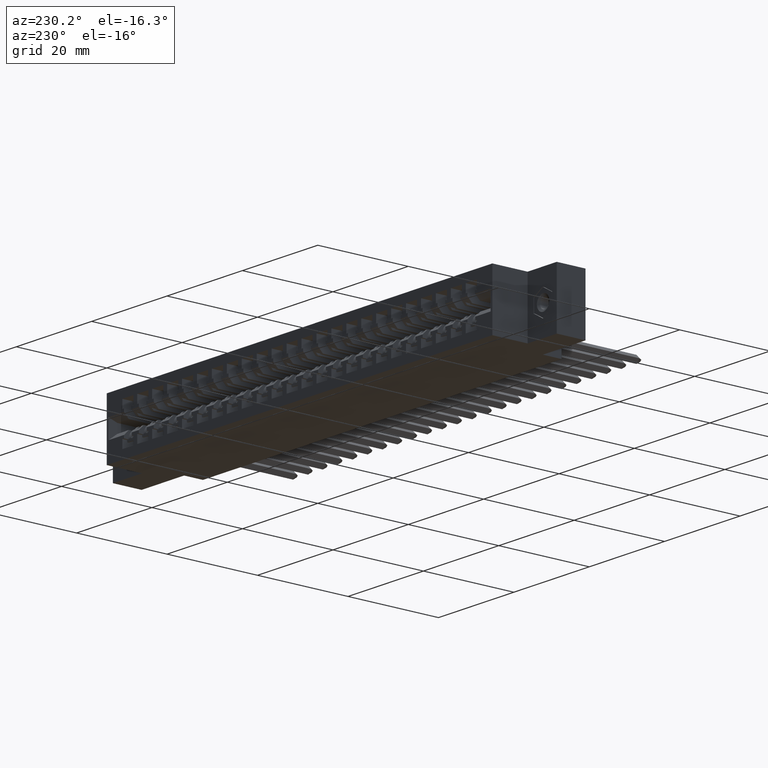
[diagram: clean part render]
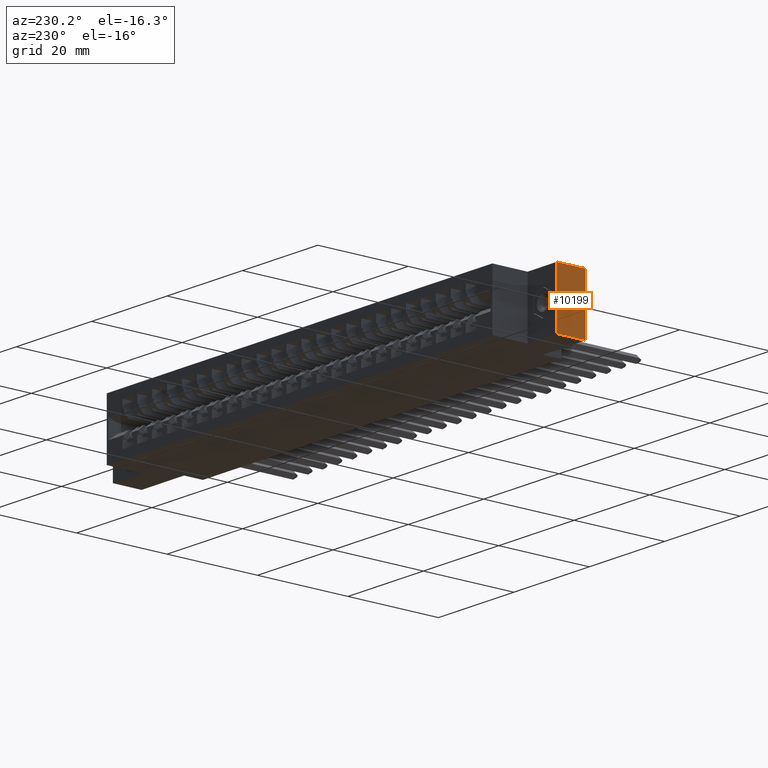
[diagram: same view with one face highlighted and labeled with its STEP entity id]
A machine part, auxiliary view. The second image highlights one B-rep face of the part: STEP entity #10199.
In plain terms, the highlighted planar face has unit normal (1, 0, 0).
Its self-contained STEP definition (entity closure, byte-faithful):
#609 = ORIENTED_EDGE ( 'NONE', *, *, #16453, .T. ) ;
#1100 = VERTEX_POINT ( 'NONE', #18389 ) ;
#1430 = VECTOR ( 'NONE', #15182, 39.37007874015748100 ) ;
#2665 = DIRECTION ( 'NONE',  ( 0.0000000000000000000, 0.0000000000000000000, 1.000000000000000000 ) ) ;
#3125 = DIRECTION ( 'NONE',  ( -0.0000000000000000000, -1.000000000000000000, -0.0000000000000000000 ) ) ;
#5475 = CARTESIAN_POINT ( 'NONE',  ( 0.0000000000000000000, 0.7199999999999999700, 0.0000000000000000000 ) ) ;
#5790 = AXIS2_PLACEMENT_3D ( 'NONE', #28127, #25760, #17388 ) ;
#6400 = ORIENTED_EDGE ( 'NONE', *, *, #7513, .F. ) ;
#7513 = EDGE_CURVE ( 'NONE', #9082, #30888, #33453, .T. ) ;
#7563 = DIRECTION ( 'NONE',  ( -0.0000000000000000000, -1.000000000000000000, -0.0000000000000000000 ) ) ;
#9082 = VERTEX_POINT ( 'NONE', #29851 ) ;
#10199 = ADVANCED_FACE ( 'NONE', ( #12842 ), #20122, .F. ) ;
#10271 = VECTOR ( 'NONE', #7563, 39.37007874015748100 ) ;
#12118 = CARTESIAN_POINT ( 'NONE',  ( 0.0000000000000000000, 0.1630000000000000100, -0.5000000000000002200 ) ) ;
#12186 = VERTEX_POINT ( 'NONE', #27842 ) ;
#12468 = VECTOR ( 'NONE', #2665, 39.37007874015748100 ) ;
#12842 = FACE_OUTER_BOUND ( 'NONE', #22342, .T. ) ;
#15182 = DIRECTION ( 'NONE',  ( -5.463695987328480100E-016, -0.0000000000000000000, -1.000000000000000000 ) ) ;
#15527 = LINE ( 'NONE', #24410, #10271 ) ;
#15930 = LINE ( 'NONE', #12118, #1430 ) ;
#15955 = EDGE_CURVE ( 'NONE', #12186, #9082, #21325, .T. ) ;
#16210 = ORIENTED_EDGE ( 'NONE', *, *, #15955, .F. ) ;
#16453 = EDGE_CURVE ( 'NONE', #12186, #1100, #15527, .T. ) ;
#17388 = DIRECTION ( 'NONE',  ( 0.0000000000000000000, 0.0000000000000000000, -1.000000000000000000 ) ) ;
#18389 = CARTESIAN_POINT ( 'NONE',  ( 0.0000000000000000000, 0.1630000000000000100, -0.5000000000000000000 ) ) ;
#20122 = PLANE ( 'NONE',  #5790 ) ;
#20197 = VECTOR ( 'NONE', #3125, 39.37007874015748100 ) ;
#20887 = ORIENTED_EDGE ( 'NONE', *, *, #21760, .F. ) ;
#21325 = LINE ( 'NONE', #33987, #12468 ) ;
#21760 = EDGE_CURVE ( 'NONE', #30888, #1100, #15930, .T. ) ;
#22342 = EDGE_LOOP ( 'NONE', ( #20887, #6400, #16210, #609 ) ) ;
#23458 = CARTESIAN_POINT ( 'NONE',  ( 2.731847993664263200E-016, 0.1630000000000000100, 3.951581205970576600E-015 ) ) ;
#24410 = CARTESIAN_POINT ( 'NONE',  ( 0.0000000000000000000, 0.7199999999999999700, -0.5000000000000000000 ) ) ;
#25760 = DIRECTION ( 'NONE',  ( 1.000000000000000000, -0.0000000000000000000, 0.0000000000000000000 ) ) ;
#27842 = CARTESIAN_POINT ( 'NONE',  ( 0.0000000000000000000, 0.4129999999999999200, -0.5000000000000000000 ) ) ;
#28127 = CARTESIAN_POINT ( 'NONE',  ( 0.0000000000000000000, 0.7199999999999999700, 0.0000000000000000000 ) ) ;
#29851 = CARTESIAN_POINT ( 'NONE',  ( 0.0000000000000000000, 0.4129999999999999200, 0.0000000000000000000 ) ) ;
#30888 = VERTEX_POINT ( 'NONE', #23458 ) ;
#33453 = LINE ( 'NONE', #5475, #20197 ) ;
#33987 = CARTESIAN_POINT ( 'NONE',  ( 0.0000000000000000000, 0.4129999999999999200, -0.5000000000000000000 ) ) ;